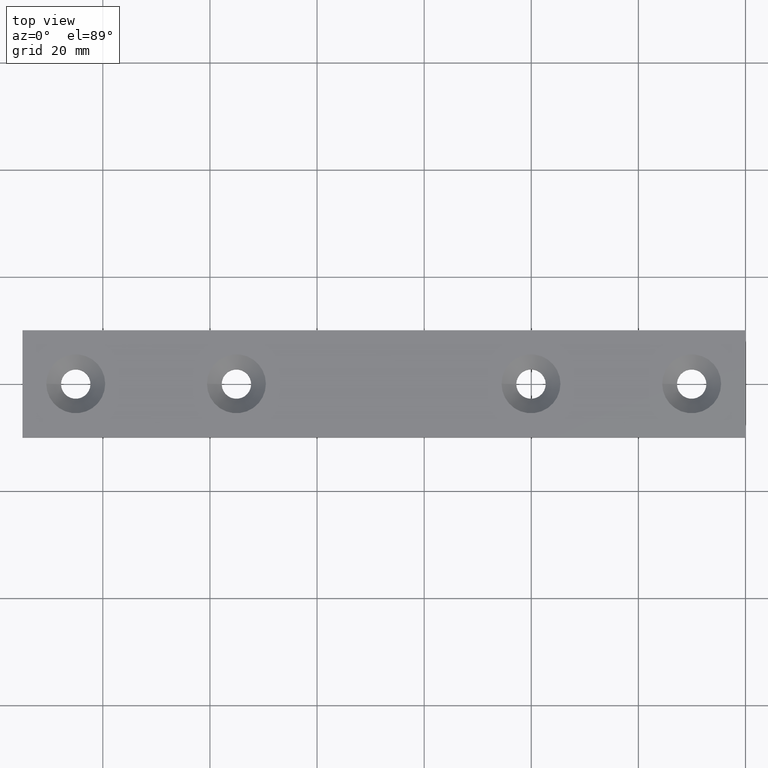
[diagram: clean part render]
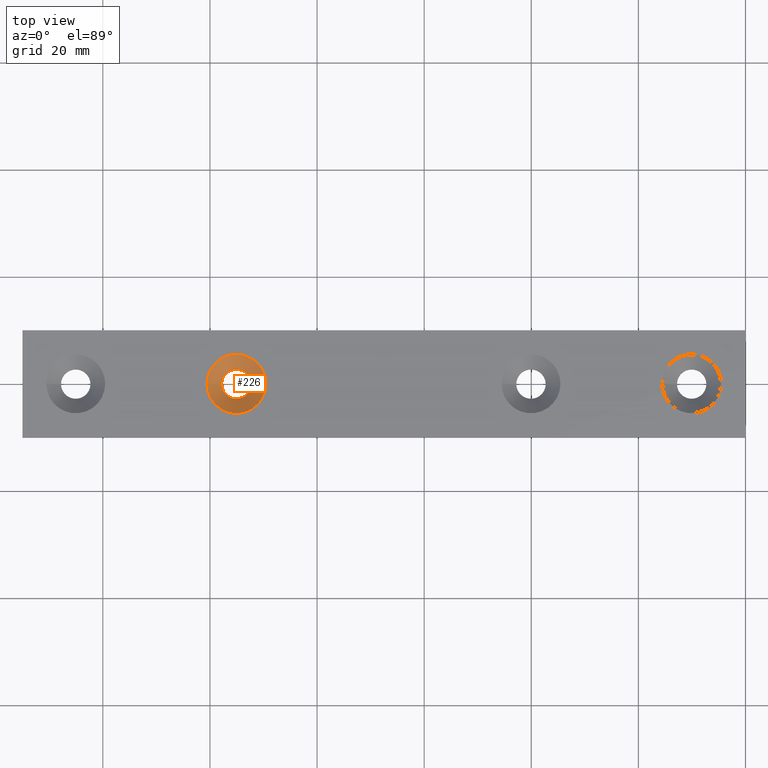
[diagram: same view with one face highlighted and labeled with its STEP entity id]
A machine part, top view. The second image highlights one B-rep face of the part: STEP entity #226.
In plain terms, the highlighted conical surface has half-angle 45 deg.
Its self-contained STEP definition (entity closure, byte-faithful):
#16=CONICAL_SURFACE('',#252,3.02500000000002,45.0000000000001);
#34=FACE_BOUND('',#86,.T.);
#44=CIRCLE('',#244,5.5);
#48=CIRCLE('',#251,2.75);
#60=FACE_OUTER_BOUND('',#85,.T.);
#85=EDGE_LOOP('',(#201));
#86=EDGE_LOOP('',(#202));
#132=VERTEX_POINT('',#362);
#136=VERTEX_POINT('',#373);
#156=EDGE_CURVE('',#132,#132,#44,.T.);
#160=EDGE_CURVE('',#136,#136,#48,.T.);
#201=ORIENTED_EDGE('',*,*,#156,.T.);
#202=ORIENTED_EDGE('',*,*,#160,.F.);
#226=ADVANCED_FACE('',(#60,#34),#16,.F.);
#244=AXIS2_PLACEMENT_3D('',#363,#295,#296);
#251=AXIS2_PLACEMENT_3D('',#374,#309,#310);
#252=AXIS2_PLACEMENT_3D('',#375,#311,#312);
#295=DIRECTION('center_axis',(-1.61487E-16,2.580957E-8,1.));
#296=DIRECTION('ref_axis',(1.,0.,0.));
#309=DIRECTION('center_axis',(0.,2.580957E-8,1.));
#310=DIRECTION('ref_axis',(1.,0.,0.));
#311=DIRECTION('center_axis',(-1.74000866594244E-17,2.58095682632844E-8,
1.));
#312=DIRECTION('ref_axis',(0.813826036051076,0.581108581114918,-1.49981615785052E-8));
#362=CARTESIAN_POINT('',(-100.55552872784,1.29048301E-7,4.99999999999927));
#363=CARTESIAN_POINT('Origin',(-95.0555287278403,1.29048301E-7,4.99999999999927));
#373=CARTESIAN_POINT('',(-97.8055287278403,5.8071985E-8,2.24999999999928));
#374=CARTESIAN_POINT('Origin',(-95.0555287278403,5.8071985E-8,2.24999999999928));
#375=CARTESIAN_POINT('Origin',(-95.0555287278403,6.51696077658137E-8,2.52499999999928));